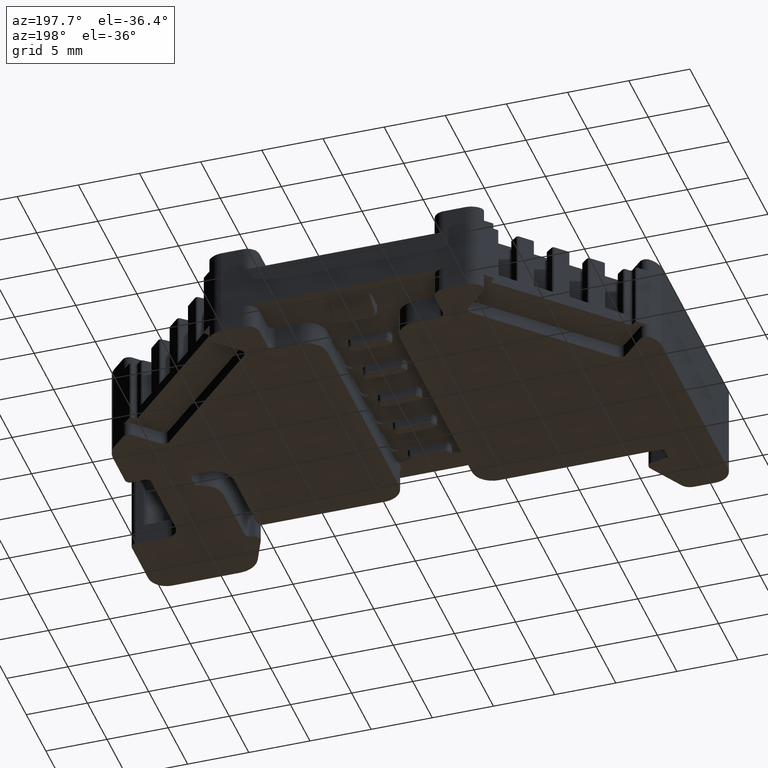
[diagram: clean part render]
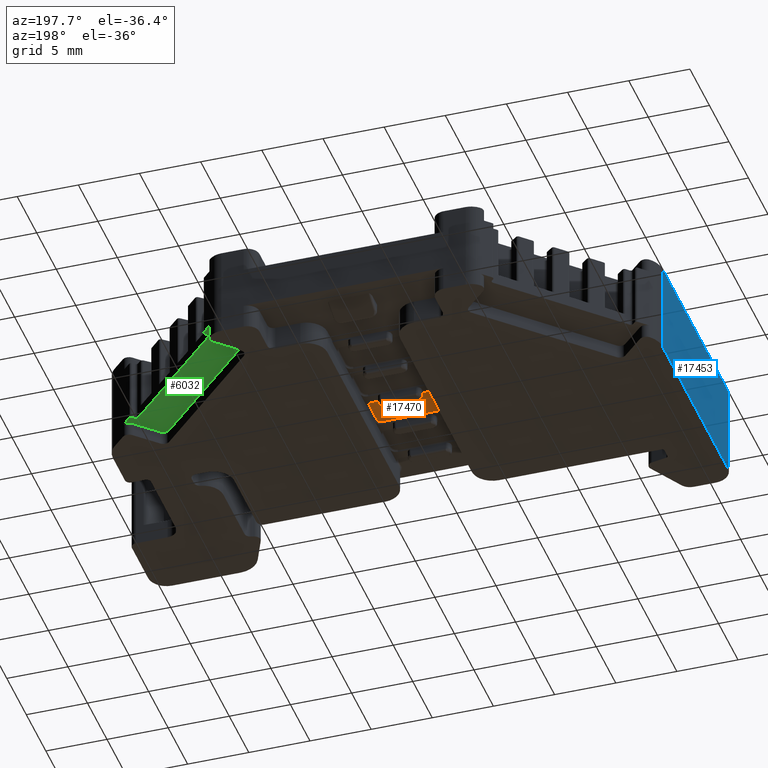
[diagram: same view with three faces highlighted in distinct colors, each labeled with its STEP entity id]
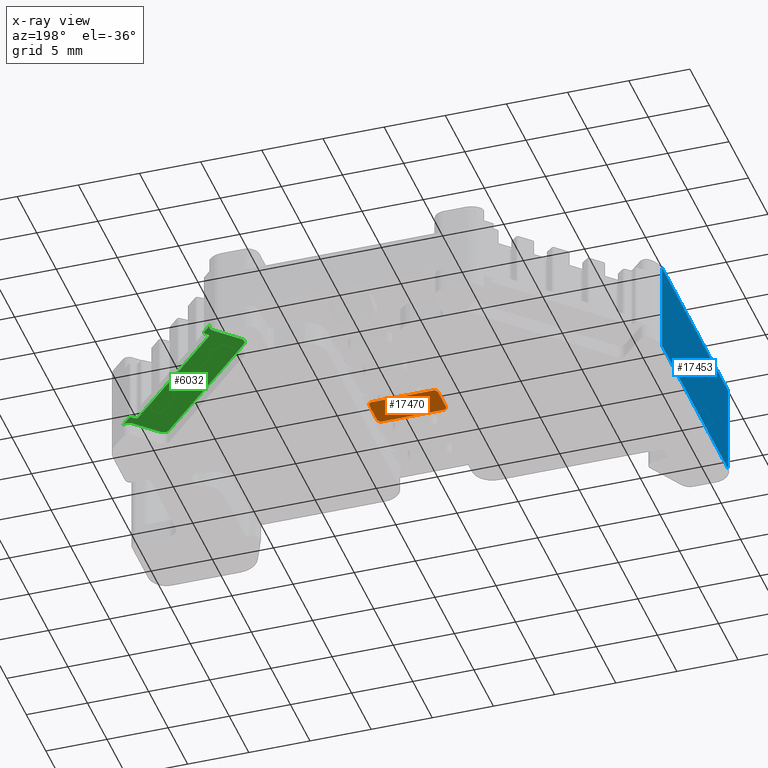
[diagram: x-ray of the same camera — body ghosted, the three highlighted faces saturated]
A machine part, auxiliary view with three faces highlighted in distinct colors.
The next image is the same camera in x-ray (body ghosted, the three faces saturated) — at least one of them is partly hidden behind the body in this view.
Their STEP definitions:

[orange] entity #17470 — the highlighted planar face has unit normal (0, 0, -1).
#837 = CARTESIAN_POINT ( 'NONE',  ( -256.6008269905461800, -15.13599079109035700, 3.017021596245496700 ) ) ;
#839 = CARTESIAN_POINT ( 'NONE',  ( -256.9473906003197500, -15.48255440086386000, 3.017021596245496700 ) ) ;
#853 = CARTESIAN_POINT ( 'NONE',  ( -256.6110437753626500, -15.22866470794979100, 3.017021596245507400 ) ) ;
#858 = CARTESIAN_POINT ( 'NONE',  ( -256.7660420891380100, -15.44642313739267300, 3.017021596245507400 ) ) ;
#859 = CARTESIAN_POINT ( 'NONE',  ( -256.6704786380356000, -15.34836083581414500, 3.017021596245507800 ) ) ;
#860 = CARTESIAN_POINT ( 'NONE',  ( -256.8477279153325400, -15.48025851445608000, 3.017021596245508300 ) ) ;
#875 = CARTESIAN_POINT ( 'NONE',  ( -256.6448791524259100, -15.31035053414422500, 3.017021596245506500 ) ) ;
#884 = CARTESIAN_POINT ( 'NONE',  ( -256.6019989509131800, -15.18415909796424600, 3.017021596245508300 ) ) ;
#1038 = LINE ( 'NONE', #1068, #15003 ) ;
#1045 = DIRECTION ( 'NONE',  ( 0.0000000000000000000, -1.000000000000000000, 0.0000000000000000000 ) ) ;
#1068 = CARTESIAN_POINT ( 'NONE',  ( -256.6008269905461800, -22.97155949835023100, 3.017021596245507400 ) ) ;
#1256 = B_SPLINE_CURVE_WITH_KNOTS ( 'NONE', 3,
 ( #16679, #16624, #16704, #16668, #16670, #16642, #16705, #16626 ),
 .UNSPECIFIED., .F., .F.,
 ( 4, 2, 2, 4 ),
 ( 0.0000000000000000000, 0.2500000000000000000, 0.5000000000000000000, 1.000000000000000000 ),
 .UNSPECIFIED. ) ;
#1282 = B_SPLINE_CURVE_WITH_KNOTS ( 'NONE', 3,
 ( #16512, #16471, #16474, #16460, #16415, #16492, #16426, #16468 ),
 .UNSPECIFIED., .F., .F.,
 ( 4, 2, 2, 4 ),
 ( 0.0000000000000000000, 0.2500000000000000000, 0.5000000000000000000, 1.000000000000000000 ),
 .UNSPECIFIED. ) ;
#1325 = VERTEX_POINT ( 'NONE', #4768 ) ;
#1368 = VERTEX_POINT ( 'NONE', #4836 ) ;
#1383 = VERTEX_POINT ( 'NONE', #4844 ) ;
#1406 = B_SPLINE_CURVE_WITH_KNOTS ( 'NONE', 3,
 ( #837, #884, #853, #875, #859, #858, #860, #839 ),
 .UNSPECIFIED., .F., .F.,
 ( 4, 2, 2, 4 ),
 ( 0.0000000000000000000, 0.2499999999999469300, 0.4999999999998938600, 1.000000000000000000 ),
 .UNSPECIFIED. ) ;
#1418 = B_SPLINE_CURVE_WITH_KNOTS ( 'NONE', 3,
 ( #3099, #3117, #3129, #3119, #3141, #3109, #3130, #3147 ),
 .UNSPECIFIED., .F., .F.,
 ( 4, 2, 2, 4 ),
 ( 0.0000000000000000000, 0.2499999999999456000, 0.4999999999998912000, 1.000000000000000000 ),
 .UNSPECIFIED. ) ;
#1422 = VERTEX_POINT ( 'NONE', #4812 ) ;
#1432 = VERTEX_POINT ( 'NONE', #4868 ) ;
#1468 = VERTEX_POINT ( 'NONE', #4860 ) ;
#2085 = EDGE_LOOP ( 'NONE', ( #19241, #19274, #19234, #18103, #18107, #18118, #18097, #19253 ) ) ;
#3099 = CARTESIAN_POINT ( 'NONE',  ( -256.9473906003196900, -12.80906369689624700, 3.017021596245509600 ) ) ;
#3109 = CARTESIAN_POINT ( 'NONE',  ( -256.6369582540173200, -12.97427879548842700, 3.017021596245507800 ) ) ;
#3117 = CARTESIAN_POINT ( 'NONE',  ( -256.8992222934459200, -12.81023565726305000, 3.017021596245508300 ) ) ;
#3119 = CARTESIAN_POINT ( 'NONE',  ( -256.7730308572660100, -12.85311585877564900, 3.017021596245506900 ) ) ;
#3129 = CARTESIAN_POINT ( 'NONE',  ( -256.8547166834603700, -12.81928048171228700, 3.017021596245507400 ) ) ;
#3130 = CARTESIAN_POINT ( 'NONE',  ( -256.6031228769540500, -13.05596462168292100, 3.017021596245507800 ) ) ;
#3141 = CARTESIAN_POINT ( 'NONE',  ( -256.7350205555961200, -12.87871534438529700, 3.017021596245507800 ) ) ;
#3147 = CARTESIAN_POINT ( 'NONE',  ( -256.6008269905461800, -13.15562730666977000, 3.017021596245508700 ) ) ;
#4768 = CARTESIAN_POINT ( 'NONE',  ( -261.8982993113698400, -15.48255440086388600, 3.017021596245506000 ) ) ;
#4812 = CARTESIAN_POINT ( 'NONE',  ( -256.9473906003197500, -15.48255440086386000, 3.017021596245496700 ) ) ;
#4836 = CARTESIAN_POINT ( 'NONE',  ( -261.8982993113697800, -12.80906369689635200, 3.017021596245510500 ) ) ;
#4844 = CARTESIAN_POINT ( 'NONE',  ( -262.2448629211431800, -13.15562730666982300, 3.017021596245501600 ) ) ;
#4860 = CARTESIAN_POINT ( 'NONE',  ( -256.9473906003196900, -12.80906369689624700, 3.017021596245509600 ) ) ;
#4868 = CARTESIAN_POINT ( 'NONE',  ( -262.2448629211431800, -15.13599079109039600, 3.017021596245498000 ) ) ;
#6388 = EDGE_CURVE ( 'NONE', #1432, #1383, #13654, .T. ) ;
#6769 = EDGE_CURVE ( 'NONE', #1368, #1468, #15898, .T. ) ;
#6801 = EDGE_CURVE ( 'NONE', #1422, #1325, #16060, .T. ) ;
#6841 = EDGE_CURVE ( 'NONE', #1383, #1368, #1282, .T. ) ;
#6861 = EDGE_CURVE ( 'NONE', #1325, #1432, #1256, .T. ) ;
#7228 = EDGE_CURVE ( 'NONE', #10844, #1422, #1406, .T. ) ;
#7270 = EDGE_CURVE ( 'NONE', #10859, #10844, #1038, .T. ) ;
#7290 = EDGE_CURVE ( 'NONE', #1468, #10859, #1418, .T. ) ;
#10084 = CARTESIAN_POINT ( 'NONE',  ( -256.6008269905461800, -13.15562730666977000, 3.017021596245508700 ) ) ;
#10105 = CARTESIAN_POINT ( 'NONE',  ( -256.6008269905461800, -15.13599079109035700, 3.017021596245496700 ) ) ;
#10336 = PLANE ( 'NONE',  #15899 ) ;
#10376 = DIRECTION ( 'NONE',  ( 0.0000000000000000000, 0.0000000000000000000, -1.000000000000000000 ) ) ;
#10395 = DIRECTION ( 'NONE',  ( -1.000000000000000000, 0.0000000000000000000, -0.0000000000000000000 ) ) ;
#10401 = FACE_OUTER_BOUND ( 'NONE', #2085, .T. ) ;
#10407 = CARTESIAN_POINT ( 'NONE',  ( -262.3933901824747700, -22.97155949835023100, 3.017021596245507400 ) ) ;
#10844 = VERTEX_POINT ( 'NONE', #10105 ) ;
#10859 = VERTEX_POINT ( 'NONE', #10084 ) ;
#13601 = CARTESIAN_POINT ( 'NONE',  ( -262.2448629211431800, -22.97155949835023100, 3.017021596245507400 ) ) ;
#13629 = DIRECTION ( 'NONE',  ( 0.0000000000000000000, 1.000000000000000000, 0.0000000000000000000 ) ) ;
#13654 = LINE ( 'NONE', #13601, #24359 ) ;
#15003 = VECTOR ( 'NONE', #1045, 1000.000000000000000 ) ;
#15874 = CARTESIAN_POINT ( 'NONE',  ( -262.3933901824747700, -12.80906369689632600, 3.017021596245507400 ) ) ;
#15898 = LINE ( 'NONE', #15874, #23627 ) ;
#15899 = AXIS2_PLACEMENT_3D ( 'NONE', #10407, #10376, #10395 ) ;
#15900 = DIRECTION ( 'NONE',  ( 1.000000000000000000, -0.0000000000000000000, 0.0000000000000000000 ) ) ;
#16047 = CARTESIAN_POINT ( 'NONE',  ( -262.3933901824747700, -15.48255440086385100, 3.017021596245507400 ) ) ;
#16060 = LINE ( 'NONE', #16047, #23672 ) ;
#16081 = DIRECTION ( 'NONE',  ( -1.000000000000000000, 0.0000000000000000000, -0.0000000000000000000 ) ) ;
#16415 = CARTESIAN_POINT ( 'NONE',  ( -262.1752112736525600, -12.94325726194617900, 3.017021596245506900 ) ) ;
#16426 = CARTESIAN_POINT ( 'NONE',  ( -261.9979619963604600, -12.81135958330420400, 3.017021596245507400 ) ) ;
#16460 = CARTESIAN_POINT ( 'NONE',  ( -262.2008107592637900, -12.98126756361879500, 3.017021596245507400 ) ) ;
#16468 = CARTESIAN_POINT ( 'NONE',  ( -261.8982993113697800, -12.80906369689635200, 3.017021596245510500 ) ) ;
#16471 = CARTESIAN_POINT ( 'NONE',  ( -262.2436909607763500, -13.10745899979778400, 3.017021596245506900 ) ) ;
#16474 = CARTESIAN_POINT ( 'NONE',  ( -262.2346461363270600, -13.06295338981318100, 3.017021596245507400 ) ) ;
#16492 = CARTESIAN_POINT ( 'NONE',  ( -262.0796478225550500, -12.84519496036765700, 3.017021596245507400 ) ) ;
#16512 = CARTESIAN_POINT ( 'NONE',  ( -262.2448629211431800, -13.15562730666982300, 3.017021596245501600 ) ) ;
#16624 = CARTESIAN_POINT ( 'NONE',  ( -261.9464676182432200, -15.48138244049700600, 3.017021596245506900 ) ) ;
#16626 = CARTESIAN_POINT ( 'NONE',  ( -262.2448629211431800, -15.13599079109039600, 3.017021596245498000 ) ) ;
#16642 = CARTESIAN_POINT ( 'NONE',  ( -262.2087316576724400, -15.31733930227255600, 3.017021596245507400 ) ) ;
#16668 = CARTESIAN_POINT ( 'NONE',  ( -262.0726590544229600, -15.43850223898431300, 3.017021596245507400 ) ) ;
#16670 = CARTESIAN_POINT ( 'NONE',  ( -262.1106693560935800, -15.41290275337424000, 3.017021596245506900 ) ) ;
#16679 = CARTESIAN_POINT ( 'NONE',  ( -261.8982993113698400, -15.48255440086388600, 3.017021596245506000 ) ) ;
#16704 = CARTESIAN_POINT ( 'NONE',  ( -261.9909732282283100, -15.47233761604771600, 3.017021596245507400 ) ) ;
#16705 = CARTESIAN_POINT ( 'NONE',  ( -262.2425670347358800, -15.23565347607812700, 3.017021596245507400 ) ) ;
#17470 = ADVANCED_FACE ( 'NONE', ( #10401 ), #10336, .T. ) ;
#18097 = ORIENTED_EDGE ( 'NONE', *, *, #7270, .T. ) ;
#18103 = ORIENTED_EDGE ( 'NONE', *, *, #6841, .T. ) ;
#18107 = ORIENTED_EDGE ( 'NONE', *, *, #6769, .T. ) ;
#18118 = ORIENTED_EDGE ( 'NONE', *, *, #7290, .T. ) ;
#19234 = ORIENTED_EDGE ( 'NONE', *, *, #6388, .T. ) ;
#19241 = ORIENTED_EDGE ( 'NONE', *, *, #6801, .T. ) ;
#19253 = ORIENTED_EDGE ( 'NONE', *, *, #7228, .T. ) ;
#19274 = ORIENTED_EDGE ( 'NONE', *, *, #6861, .T. ) ;
#23627 = VECTOR ( 'NONE', #15900, 1000.000000000000000 ) ;
#23672 = VECTOR ( 'NONE', #16081, 1000.000000000000000 ) ;
#24359 = VECTOR ( 'NONE', #13629, 1000.000000000000000 ) ;

[blue] entity #17453 — the highlighted planar face has unit normal (-1, 0, 0).
#59 = CARTESIAN_POINT ( 'NONE',  ( -281.5407308503553200, -26.93266702404676500, -9.734692868469334600 ) ) ;
#70 = LINE ( 'NONE', #59, #16493 ) ;
#97 = DIRECTION ( 'NONE',  ( -0.0000000000000000000, -0.0000000000000000000, -1.000000000000000000 ) ) ;
#163 = LINE ( 'NONE', #191, #16538 ) ;
#178 = DIRECTION ( 'NONE',  ( 0.0000000000000000000, -1.000000000000000000, -0.0000000000000000000 ) ) ;
#191 = CARTESIAN_POINT ( 'NONE',  ( -281.5407308503558300, -57.01993662607642200, 1.001658111825507000 ) ) ;
#1121 = VERTEX_POINT ( 'NONE', #4670 ) ;
#1162 = VERTEX_POINT ( 'NONE', #4657 ) ;
#4657 = CARTESIAN_POINT ( 'NONE',  ( -281.5407308503554900, -10.06012653343529800, 8.498021178400511700 ) ) ;
#4670 = CARTESIAN_POINT ( 'NONE',  ( -281.5407308503554900, -10.06012653343529800, 1.001658111825508300 ) ) ;
#6473 = EDGE_CURVE ( 'NONE', #1162, #1121, #14047, .T. ) ;
#7003 = EDGE_CURVE ( 'NONE', #1162, #22055, #16328, .T. ) ;
#7024 = EDGE_CURVE ( 'NONE', #22055, #22038, #70, .T. ) ;
#7048 = EDGE_CURVE ( 'NONE', #1121, #22038, #163, .T. ) ;
#7966 = CARTESIAN_POINT ( 'NONE',  ( -281.5407308503553200, -26.93266702404676500, 8.498021178400511700 ) ) ;
#8014 = CARTESIAN_POINT ( 'NONE',  ( -281.5407308503556000, -26.93266702404632100, 1.001658111825506100 ) ) ;
#10206 = FACE_OUTER_BOUND ( 'NONE', #20567, .T. ) ;
#10267 = DIRECTION ( 'NONE',  ( -1.000000000000000000, 0.0000000000000000000, 0.0000000000000000000 ) ) ;
#10301 = PLANE ( 'NONE',  #15943 ) ;
#10303 = CARTESIAN_POINT ( 'NONE',  ( -281.5407308503562800, -62.31177528355154000, -35.84829569756194400 ) ) ;
#10308 = DIRECTION ( 'NONE',  ( 0.0000000000000000000, 0.0000000000000000000, 1.000000000000000000 ) ) ;
#13685 = DIRECTION ( 'NONE',  ( 0.0000000000000000000, -1.000000000000000000, -0.0000000000000000000 ) ) ;
#14025 = CARTESIAN_POINT ( 'NONE',  ( -281.5407308503562800, -10.06012653343529800, -35.84829569756194400 ) ) ;
#14036 = DIRECTION ( 'NONE',  ( -0.0000000000000000000, -0.0000000000000000000, -1.000000000000000000 ) ) ;
#14047 = LINE ( 'NONE', #14025, #24399 ) ;
#15943 = AXIS2_PLACEMENT_3D ( 'NONE', #10303, #10267, #10308 ) ;
#16328 = LINE ( 'NONE', #17443, #16476 ) ;
#16476 = VECTOR ( 'NONE', #13685, 1000.000000000000000 ) ;
#16493 = VECTOR ( 'NONE', #97, 1000.000000000000000 ) ;
#16538 = VECTOR ( 'NONE', #178, 1000.000000000000000 ) ;
#17443 = CARTESIAN_POINT ( 'NONE',  ( -281.5407308503558300, -57.01993662607642200, 8.498021178400510000 ) ) ;
#17453 = ADVANCED_FACE ( 'NONE', ( #10206 ), #10301, .T. ) ;
#20567 = EDGE_LOOP ( 'NONE', ( #24534, #24535, #25105, #25106 ) ) ;
#22038 = VERTEX_POINT ( 'NONE', #8014 ) ;
#22055 = VERTEX_POINT ( 'NONE', #7966 ) ;
#24399 = VECTOR ( 'NONE', #14036, 1000.000000000000000 ) ;
#24534 = ORIENTED_EDGE ( 'NONE', *, *, #6473, .T. ) ;
#24535 = ORIENTED_EDGE ( 'NONE', *, *, #7048, .T. ) ;
#25105 = ORIENTED_EDGE ( 'NONE', *, *, #7024, .F. ) ;
#25106 = ORIENTED_EDGE ( 'NONE', *, *, #7003, .F. ) ;

[green] entity #6032 — the highlighted planar face has unit normal (0, 0, -1).
#349 = LINE ( 'NONE', #361, #16671 ) ;
#361 = CARTESIAN_POINT ( 'NONE',  ( -247.7988416488332500, 0.4006904095268347700, 2.125858028256507400 ) ) ;
#383 = DIRECTION ( 'NONE',  ( 0.7071067811865601200, -0.7071067811865349200, 0.0000000000000000000 ) ) ;
#471 = DIRECTION ( 'NONE',  ( 0.7071067811865474600, -0.7071067811865474600, 0.0000000000000000000 ) ) ;
#474 = LINE ( 'NONE', #483, #16687 ) ;
#483 = CARTESIAN_POINT ( 'NONE',  ( -222.4855863816189300, -24.05920298296593900, 2.125858028256537100 ) ) ;
#602 = LINE ( 'NONE', #625, #14769 ) ;
#625 = CARTESIAN_POINT ( 'NONE',  ( -248.3847500332988100, 1.839960668713884500, 2.125858028256507400 ) ) ;
#626 = DIRECTION ( 'NONE',  ( 0.7071067811862946600, -0.7071067811868002600, 0.0000000000000000000 ) ) ;
#1080 = VERTEX_POINT ( 'NONE', #4560 ) ;
#1081 = VERTEX_POINT ( 'NONE', #4577 ) ;
#1089 = VERTEX_POINT ( 'NONE', #4565 ) ;
#1236 = B_SPLINE_CURVE_WITH_KNOTS ( 'NONE', 3,
 ( #17274, #17277, #17282, #17280 ),
 .UNSPECIFIED., .F., .F.,
 ( 4, 4 ),
 ( 0.0000000000000000000, 1.000000000000000000 ),
 .UNSPECIFIED. ) ;
#1248 = VERTEX_POINT ( 'NONE', #4726 ) ;
#1277 = VERTEX_POINT ( 'NONE', #4689 ) ;
#1293 = VERTEX_POINT ( 'NONE', #4770 ) ;
#1309 = B_SPLINE_CURVE_WITH_KNOTS ( 'NONE', 3,
 ( #17305, #17285, #17287, #17307 ),
 .UNSPECIFIED., .F., .F.,
 ( 4, 4 ),
 ( 0.0000000000000000000, 1.000000000000000000 ),
 .UNSPECIFIED. ) ;
#1380 = VERTEX_POINT ( 'NONE', #4830 ) ;
#1397 = VERTEX_POINT ( 'NONE', #4833 ) ;
#2016 = B_SPLINE_CURVE_WITH_KNOTS ( 'NONE', 3,
 ( #15476, #15524, #15537, #15542, #15544, #15455 ),
 .UNSPECIFIED., .F., .F.,
 ( 4, 2, 4 ),
 ( 0.0000000000000000000, 0.5000000000000000000, 1.000000000000000000 ),
 .UNSPECIFIED. ) ;
#2068 = B_SPLINE_CURVE_WITH_KNOTS ( 'NONE', 3,
 ( #15503, #15478, #15530, #15507 ),
 .UNSPECIFIED., .F., .F.,
 ( 4, 4 ),
 ( 0.0000000000000000000, 1.000000000000000000 ),
 .UNSPECIFIED. ) ;
#2092 = B_SPLINE_CURVE_WITH_KNOTS ( 'NONE', 3,
 ( #14936, #14879, #14887, #14905, #14888, #14913 ),
 .UNSPECIFIED., .F., .F.,
 ( 4, 2, 4 ),
 ( 0.0000000000000000000, 0.5000000000000000000, 1.000000000000000000 ),
 .UNSPECIFIED. ) ;
#2109 = B_SPLINE_CURVE_WITH_KNOTS ( 'NONE', 3,
 ( #15279, #15309, #15275, #15277 ),
 .UNSPECIFIED., .F., .F.,
 ( 4, 4 ),
 ( 0.0000000000000000000, 1.000000000000000000 ),
 .UNSPECIFIED. ) ;
#2191 = B_SPLINE_CURVE_WITH_KNOTS ( 'NONE', 3,
 ( #15891, #15857, #15886, #15925 ),
 .UNSPECIFIED., .F., .F.,
 ( 4, 4 ),
 ( 0.0000000000000000000, 1.000000000000000000 ),
 .UNSPECIFIED. ) ;
#2192 = EDGE_CURVE ( 'NONE', #1081, #1089, #4999, .T. ) ;
#2213 = EDGE_CURVE ( 'NONE', #1089, #1080, #17631, .T. ) ;
#2554 = EDGE_CURVE ( 'NONE', #18486, #10857, #23426, .T. ) ;
#2624 = EDGE_CURVE ( 'NONE', #18530, #18528, #19930, .T. ) ;
#2649 = EDGE_CURVE ( 'NONE', #1081, #18043, #17818, .T. ) ;
#2682 = EDGE_CURVE ( 'NONE', #1080, #22090, #20047, .T. ) ;
#2684 = EDGE_CURVE ( 'NONE', #22090, #18490, #17814, .T. ) ;
#2741 = VERTEX_POINT ( 'NONE', #20076 ) ;
#2742 = VERTEX_POINT ( 'NONE', #20089 ) ;
#2760 = VERTEX_POINT ( 'NONE', #20115 ) ;
#4560 = CARTESIAN_POINT ( 'NONE',  ( -241.1192790592797600, -10.37879012811009700, 2.125858028256509600 ) ) ;
#4565 = CARTESIAN_POINT ( 'NONE',  ( -240.4213634446919900, -10.38106658553725100, 2.125858028256509600 ) ) ;
#4577 = CARTESIAN_POINT ( 'NONE',  ( -238.6743608650446000, -8.656500748587749400, 2.125858028256509600 ) ) ;
#4583 = VERTEX_POINT ( 'NONE', #20376 ) ;
#4602 = VERTEX_POINT ( 'NONE', #20377 ) ;
#4689 = CARTESIAN_POINT ( 'NONE',  ( -247.8568451523702300, 0.5407232544316770100, 2.125858028256507400 ) ) ;
#4726 = CARTESIAN_POINT ( 'NONE',  ( -238.6201079049248800, -7.924681459660274800, 2.125858028256530500 ) ) ;
#4770 = CARTESIAN_POINT ( 'NONE',  ( -239.3268611516817300, -8.071290087624429800, 2.125858028256514900 ) ) ;
#4830 = CARTESIAN_POINT ( 'NONE',  ( -247.6522264012822600, 1.107437036696888200, 2.125858028256516700 ) ) ;
#4833 = CARTESIAN_POINT ( 'NONE',  ( -247.7988416488332500, 0.4006904095268241100, 2.125858028256512700 ) ) ;
#4979 = DIRECTION ( 'NONE',  ( -0.7116619484723418800, -0.7025220787253235700, -0.0000000000000000000 ) ) ;
#4994 = CARTESIAN_POINT ( 'NONE',  ( -237.2596279064445100, -7.259937196116754700, 2.125858028256509600 ) ) ;
#4999 = LINE ( 'NONE', #4994, #17569 ) ;
#5030 = CARTESIAN_POINT ( 'NONE',  ( -240.7691757126186200, -10.02872925153573600, 2.125858028256509600 ) ) ;
#5037 = DIRECTION ( 'NONE',  ( 0.0000000000000000000, 0.0000000000000000000, -1.000000000000000000 ) ) ;
#5055 = DIRECTION ( 'NONE',  ( -1.000000000000000000, 0.0000000000000000000, 0.0000000000000000000 ) ) ;
#6032 = ADVANCED_FACE ( 'NONE', ( #11867 ), #11880, .T. ) ;
#6657 = EDGE_CURVE ( 'NONE', #1248, #2741, #2092, .T. ) ;
#6696 = EDGE_CURVE ( 'NONE', #2742, #1277, #2109, .T. ) ;
#6721 = EDGE_CURVE ( 'NONE', #1277, #1397, #2068, .T. ) ;
#6724 = EDGE_CURVE ( 'NONE', #1293, #2760, #2016, .T. ) ;
#6765 = EDGE_CURVE ( 'NONE', #4583, #1380, #2191, .T. ) ;
#6914 = EDGE_CURVE ( 'NONE', #18490, #18530, #16310, .T. ) ;
#6951 = EDGE_CURVE ( 'NONE', #4602, #4583, #1236, .T. ) ;
#6955 = EDGE_CURVE ( 'NONE', #18528, #18486, #1309, .T. ) ;
#7097 = EDGE_CURVE ( 'NONE', #1397, #1293, #349, .T. ) ;
#7118 = EDGE_CURVE ( 'NONE', #1248, #18043, #474, .T. ) ;
#7157 = EDGE_CURVE ( 'NONE', #10857, #1380, #602, .T. ) ;
#7526 = EDGE_CURVE ( 'NONE', #2760, #2741, #8647, .T. ) ;
#7585 = EDGE_CURVE ( 'NONE', #4602, #2742, #8992, .T. ) ;
#7855 = CARTESIAN_POINT ( 'NONE',  ( -250.1240610794956500, -0.6682290525229641600, 2.125858028256509600 ) ) ;
#7857 = CARTESIAN_POINT ( 'NONE',  ( -250.2713381780605700, -1.020564901228759600, 2.125858028256509600 ) ) ;
#7895 = CARTESIAN_POINT ( 'NONE',  ( -248.2208901358063400, 1.444367881858001700, 2.125858028256507400 ) ) ;
#7900 = CARTESIAN_POINT ( 'NONE',  ( -248.3873132571849300, 1.046228372820737600, 2.125858028256505600 ) ) ;
#8000 = CARTESIAN_POINT ( 'NONE',  ( -250.1263506536168700, -1.370625777803194900, 2.125858028256509600 ) ) ;
#8647 = LINE ( 'NONE', #8658, #15342 ) ;
#8658 = CARTESIAN_POINT ( 'NONE',  ( -238.9001735947350100, -7.924681459660453300, 2.125858028256509600 ) ) ;
#8683 = DIRECTION ( 'NONE',  ( 0.7071067811863400700, 0.7071067811867549600, 0.0000000000000000000 ) ) ;
#8992 = LINE ( 'NONE', #8993, #15451 ) ;
#8993 = CARTESIAN_POINT ( 'NONE',  ( -247.7988416488331300, 0.6807560993364481000, 2.125858028256506000 ) ) ;
#8997 = DIRECTION ( 'NONE',  ( -0.7071067811865441300, -0.7071067811865510100, 0.0000000000000000000 ) ) ;
#9927 = CARTESIAN_POINT ( 'NONE',  ( -237.8857402154315300, -8.659049149153345200, 2.125858028256523400 ) ) ;
#10127 = CARTESIAN_POINT ( 'NONE',  ( -248.3847500332988700, 1.839960668713922100, 2.125858028256515800 ) ) ;
#10857 = VERTEX_POINT ( 'NONE', #10127 ) ;
#11850 = DIRECTION ( 'NONE',  ( 0.0000000000000000000, 0.0000000000000000000, -1.000000000000000000 ) ) ;
#11867 = FACE_OUTER_BOUND ( 'NONE', #20605, .T. ) ;
#11880 = PLANE ( 'NONE',  #24011 ) ;
#11881 = CARTESIAN_POINT ( 'NONE',  ( -258.4431482130327700, -22.97155602059990900, 2.125858028256507400 ) ) ;
#11883 = DIRECTION ( 'NONE',  ( -1.000000000000000000, 0.0000000000000000000, -0.0000000000000000000 ) ) ;
#14769 = VECTOR ( 'NONE', #626, 1000.000000000000100 ) ;
#14879 = CARTESIAN_POINT ( 'NONE',  ( -238.6567684179929600, -7.888020946592638100, 2.125858028256525100 ) ) ;
#14887 = CARTESIAN_POINT ( 'NONE',  ( -238.7082949550459100, -7.866677956123202100, 2.125858028256525100 ) ) ;
#14888 = CARTESIAN_POINT ( 'NONE',  ( -238.8635130816670700, -7.888020946592639900, 2.125858028256525100 ) ) ;
#14905 = CARTESIAN_POINT ( 'NONE',  ( -238.8119865446141100, -7.866677956123196800, 2.125858028256524300 ) ) ;
#14913 = CARTESIAN_POINT ( 'NONE',  ( -238.9001735947349500, -7.924681459660510200, 2.125858028256516700 ) ) ;
#14936 = CARTESIAN_POINT ( 'NONE',  ( -238.6201079049248800, -7.924681459660274800, 2.125858028256530500 ) ) ;
#15275 = CARTESIAN_POINT ( 'NONE',  ( -247.8555986997242500, 0.5948931844191873700, 2.125858028256507400 ) ) ;
#15277 = CARTESIAN_POINT ( 'NONE',  ( -247.8568451523702300, 0.5407232544316770100, 2.125858028256507400 ) ) ;
#15279 = CARTESIAN_POINT ( 'NONE',  ( -247.7988416488331000, 0.6807560993363887000, 2.125858028256506500 ) ) ;
#15309 = CARTESIAN_POINT ( 'NONE',  ( -247.8362641985452200, 0.6415707993874276700, 2.125858028256507400 ) ) ;
#15342 = VECTOR ( 'NONE', #8683, 1000.000000000000000 ) ;
#15451 = VECTOR ( 'NONE', #8997, 1000.000000000000000 ) ;
#15455 = CARTESIAN_POINT ( 'NONE',  ( -239.0467888424420000, -8.071296707367455500, 2.125858028256510900 ) ) ;
#15476 = CARTESIAN_POINT ( 'NONE',  ( -239.3268611516817300, -8.071290087624429800, 2.125858028256514900 ) ) ;
#15478 = CARTESIAN_POINT ( 'NONE',  ( -247.8555986997242500, 0.4865533244441990200, 2.125858028256507400 ) ) ;
#15503 = CARTESIAN_POINT ( 'NONE',  ( -247.8568451523702300, 0.5407232544316770100, 2.125858028256507400 ) ) ;
#15507 = CARTESIAN_POINT ( 'NONE',  ( -247.7988416488332500, 0.4006904095268241100, 2.125858028256512700 ) ) ;
#15524 = CARTESIAN_POINT ( 'NONE',  ( -239.2869329192955900, -8.109293676523641600, 2.125858028256507400 ) ) ;
#15530 = CARTESIAN_POINT ( 'NONE',  ( -247.8362641985452500, 0.4398757094759182500, 2.125858028256507400 ) ) ;
#15537 = CARTESIAN_POINT ( 'NONE',  ( -239.2389212578676200, -8.128647101007057800, 2.125858028256507400 ) ) ;
#15542 = CARTESIAN_POINT ( 'NONE',  ( -239.1347314783352000, -8.129953320691909000, 2.125858028256507400 ) ) ;
#15544 = CARTESIAN_POINT ( 'NONE',  ( -239.0880523031154600, -8.110618819531234500, 2.125858028256507400 ) ) ;
#15857 = CARTESIAN_POINT ( 'NONE',  ( -247.5942228977451100, 1.019249986575958300, 2.125858028256507800 ) ) ;
#15886 = CARTESIAN_POINT ( 'NONE',  ( -247.6155658882145500, 1.070776523628840900, 2.125858028256507800 ) ) ;
#15891 = CARTESIAN_POINT ( 'NONE',  ( -247.5942228977451100, 0.9674041917918059200, 2.125858028256507400 ) ) ;
#15925 = CARTESIAN_POINT ( 'NONE',  ( -247.6522264012822600, 1.107437036696888200, 2.125858028256516700 ) ) ;
#16310 = CIRCLE ( 'NONE', #16346, 0.4950908711050250300 ) ;
#16346 = AXIS2_PLACEMENT_3D ( 'NONE', #17156, #17134, #17112 ) ;
#16671 = VECTOR ( 'NONE', #383, 1000.000000000000100 ) ;
#16687 = VECTOR ( 'NONE', #471, 1000.000000000000100 ) ;
#17112 = DIRECTION ( 'NONE',  ( -1.000000000000000000, 0.0000000000000000000, 0.0000000000000000000 ) ) ;
#17134 = DIRECTION ( 'NONE',  ( 0.0000000000000000000, 0.0000000000000000000, -1.000000000000000000 ) ) ;
#17156 = CARTESIAN_POINT ( 'NONE',  ( -249.7762473069555500, -1.020564901228759600, 2.125858028256509600 ) ) ;
#17274 = CARTESIAN_POINT ( 'NONE',  ( -247.6522264012825500, 0.8273713468869021700, 2.125858028256506500 ) ) ;
#17277 = CARTESIAN_POINT ( 'NONE',  ( -247.6155658882145800, 0.8640318599547197600, 2.125858028256506000 ) ) ;
#17280 = CARTESIAN_POINT ( 'NONE',  ( -247.5942228977451100, 0.9674041917918059200, 2.125858028256507400 ) ) ;
#17282 = CARTESIAN_POINT ( 'NONE',  ( -247.5942228977451100, 0.9155583970076273100, 2.125858028256506000 ) ) ;
#17285 = CARTESIAN_POINT ( 'NONE',  ( -248.2777305352080900, 1.156314558755352100, 2.125858028256507400 ) ) ;
#17287 = CARTESIAN_POINT ( 'NONE',  ( -248.2222561614152300, 1.289027728434441800, 2.125858028256507400 ) ) ;
#17305 = CARTESIAN_POINT ( 'NONE',  ( -248.3873132571849300, 1.046228372820737600, 2.125858028256505600 ) ) ;
#17307 = CARTESIAN_POINT ( 'NONE',  ( -248.2208901358063400, 1.444367881858001700, 2.125858028256507400 ) ) ;
#17569 = VECTOR ( 'NONE', #4979, 1000.000000000000000 ) ;
#17631 = CIRCLE ( 'NONE', #17634, 0.4950908711049695200 ) ;
#17634 = AXIS2_PLACEMENT_3D ( 'NONE', #5030, #5037, #5055 ) ;
#17775 = VECTOR ( 'NONE', #19895, 1000.000000000000000 ) ;
#17784 = AXIS2_PLACEMENT_3D ( 'NONE', #20063, #20058, #20044 ) ;
#17806 = AXIS2_PLACEMENT_3D ( 'NONE', #20017, #20011, #20020 ) ;
#17808 = VECTOR ( 'NONE', #20043, 1000.000000000000100 ) ;
#17814 = CIRCLE ( 'NONE', #17784, 0.4950908711050250300 ) ;
#17818 = CIRCLE ( 'NONE', #17806, 0.5594526843486491400 ) ;
#18043 = VERTEX_POINT ( 'NONE', #9927 ) ;
#18486 = VERTEX_POINT ( 'NONE', #7895 ) ;
#18490 = VERTEX_POINT ( 'NONE', #7857 ) ;
#18528 = VERTEX_POINT ( 'NONE', #7900 ) ;
#18530 = VERTEX_POINT ( 'NONE', #7855 ) ;
#19700 = CARTESIAN_POINT ( 'NONE',  ( -248.3847500332988700, 1.839960668713922100, 2.125858028256515800 ) ) ;
#19702 = CARTESIAN_POINT ( 'NONE',  ( -248.2208901358063400, 1.444367881858001700, 2.125858028256507400 ) ) ;
#19704 = CARTESIAN_POINT ( 'NONE',  ( -248.2768462182202400, 1.730157786542505300, 2.125858028256507400 ) ) ;
#19723 = CARTESIAN_POINT ( 'NONE',  ( -248.2222262523894200, 1.598293524257211200, 2.125858028256507400 ) ) ;
#19895 = DIRECTION ( 'NONE',  ( 0.7116589484254788300, 0.7025251177900628800, -0.0000000000000000000 ) ) ;
#19928 = CARTESIAN_POINT ( 'NONE',  ( -250.1240610794958200, -0.6682290525231303600, 2.125858028256509600 ) ) ;
#19930 = LINE ( 'NONE', #19928, #17775 ) ;
#20011 = DIRECTION ( 'NONE',  ( 0.0000000000000000000, 0.0000000000000000000, -1.000000000000000000 ) ) ;
#20017 = CARTESIAN_POINT ( 'NONE',  ( -238.2813330022875400, -9.054641936009318200, 2.125858028256509600 ) ) ;
#20020 = DIRECTION ( 'NONE',  ( -1.000000000000000000, 0.0000000000000000000, 0.0000000000000000000 ) ) ;
#20043 = DIRECTION ( 'NONE',  ( -0.7070638886819927700, 0.7071496710894367200, -0.0000000000000000000 ) ) ;
#20044 = DIRECTION ( 'NONE',  ( -1.000000000000000000, 0.0000000000000000000, 0.0000000000000000000 ) ) ;
#20047 = LINE ( 'NONE', #20057, #17808 ) ;
#20057 = CARTESIAN_POINT ( 'NONE',  ( -241.1192790592797100, -10.37879012811016800, 2.125858028256509600 ) ) ;
#20058 = DIRECTION ( 'NONE',  ( 0.0000000000000000000, 0.0000000000000000000, -1.000000000000000000 ) ) ;
#20063 = CARTESIAN_POINT ( 'NONE',  ( -249.7762473069555500, -1.020564901228759600, 2.125858028256509600 ) ) ;
#20076 = CARTESIAN_POINT ( 'NONE',  ( -238.9001735947349500, -7.924681459660510200, 2.125858028256516700 ) ) ;
#20089 = CARTESIAN_POINT ( 'NONE',  ( -247.7988416488331000, 0.6807560993363887000, 2.125858028256506500 ) ) ;
#20115 = CARTESIAN_POINT ( 'NONE',  ( -239.0467888424420000, -8.071296707367455500, 2.125858028256510900 ) ) ;
#20376 = CARTESIAN_POINT ( 'NONE',  ( -247.5942228977451100, 0.9674041917918059200, 2.125858028256507400 ) ) ;
#20377 = CARTESIAN_POINT ( 'NONE',  ( -247.6522264012825500, 0.8273713468869021700, 2.125858028256506500 ) ) ;
#20605 = EDGE_LOOP ( 'NONE', ( #22228, #22229, #22237, #22285, #22226, #22247, #22241, #22275, #22273, #22268, #22257, #22210, #22279, #22211, #22227, #22235, #22260, #22233, #22269, #22277 ) ) ;
#22090 = VERTEX_POINT ( 'NONE', #8000 ) ;
#22210 = ORIENTED_EDGE ( 'NONE', *, *, #6955, .T. ) ;
#22211 = ORIENTED_EDGE ( 'NONE', *, *, #7157, .T. ) ;
#22226 = ORIENTED_EDGE ( 'NONE', *, *, #2649, .F. ) ;
#22227 = ORIENTED_EDGE ( 'NONE', *, *, #6765, .F. ) ;
#22228 = ORIENTED_EDGE ( 'NONE', *, *, #6724, .T. ) ;
#22229 = ORIENTED_EDGE ( 'NONE', *, *, #7526, .T. ) ;
#22233 = ORIENTED_EDGE ( 'NONE', *, *, #6696, .T. ) ;
#22235 = ORIENTED_EDGE ( 'NONE', *, *, #6951, .F. ) ;
#22237 = ORIENTED_EDGE ( 'NONE', *, *, #6657, .F. ) ;
#22241 = ORIENTED_EDGE ( 'NONE', *, *, #2213, .T. ) ;
#22247 = ORIENTED_EDGE ( 'NONE', *, *, #2192, .T. ) ;
#22257 = ORIENTED_EDGE ( 'NONE', *, *, #2624, .T. ) ;
#22260 = ORIENTED_EDGE ( 'NONE', *, *, #7585, .T. ) ;
#22268 = ORIENTED_EDGE ( 'NONE', *, *, #6914, .T. ) ;
#22269 = ORIENTED_EDGE ( 'NONE', *, *, #6721, .T. ) ;
#22273 = ORIENTED_EDGE ( 'NONE', *, *, #2684, .T. ) ;
#22275 = ORIENTED_EDGE ( 'NONE', *, *, #2682, .T. ) ;
#22277 = ORIENTED_EDGE ( 'NONE', *, *, #7097, .T. ) ;
#22279 = ORIENTED_EDGE ( 'NONE', *, *, #2554, .T. ) ;
#22285 = ORIENTED_EDGE ( 'NONE', *, *, #7118, .T. ) ;
#23426 = B_SPLINE_CURVE_WITH_KNOTS ( 'NONE', 3,
 ( #19702, #19723, #19704, #19700 ),
 .UNSPECIFIED., .F., .F.,
 ( 4, 4 ),
 ( 0.0000000000000000000, 1.000000000000000000 ),
 .UNSPECIFIED. ) ;
#24011 = AXIS2_PLACEMENT_3D ( 'NONE', #11881, #11850, #11883 ) ;